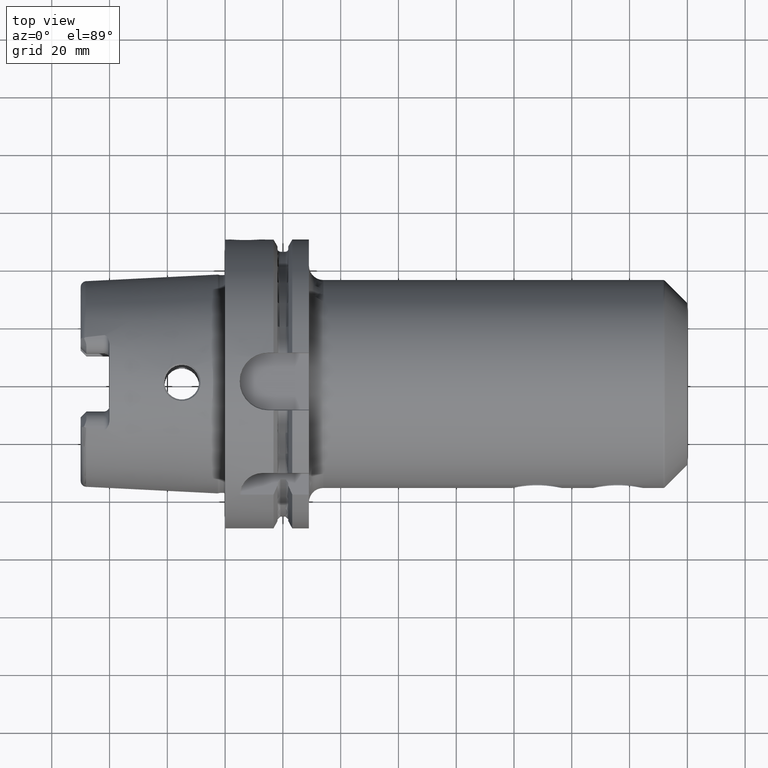
[diagram: clean part render]
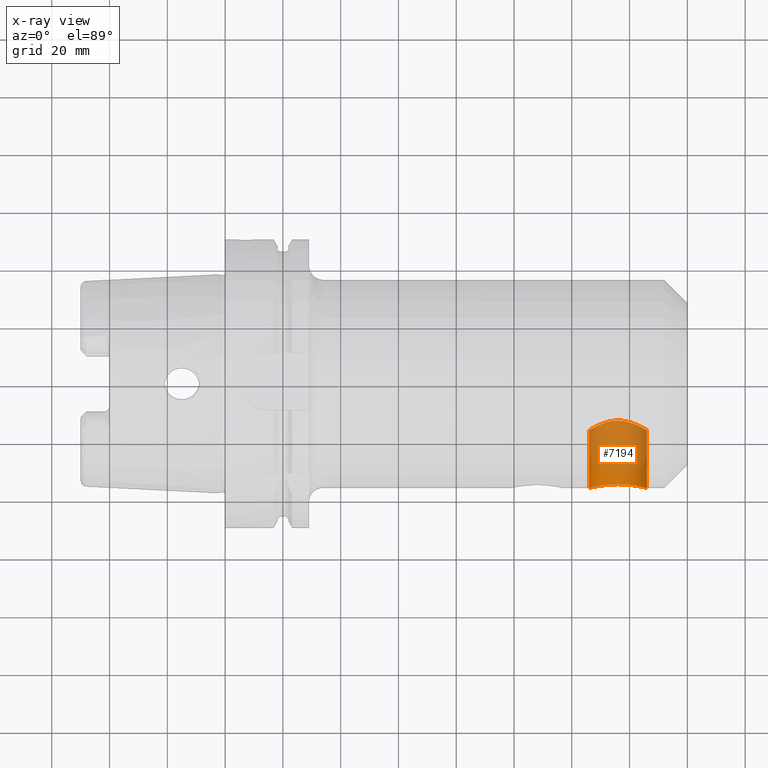
[diagram: x-ray — body ghosted, one internal face saturated and labeled with its STEP entity id]
A machine part, top view, then the same camera in x-ray: the body is ghosted and one INTERNAL B-rep face — a face not visible from any outside direction — is saturated and labeled: STEP entity #7194.
In plain terms, the highlighted cylindrical surface (edge-blend (fillet) strip) has radius 10 mm, axis along (0, -1, 0).
Its self-contained STEP definition (entity closure, byte-faithful):
#7025=CARTESIAN_POINT('',(1.46E2,-3.600001948871E1,0.E0));
#7026=CARTESIAN_POINT('',(1.46E2,-3.600001948871E1,-3.326970035041E-1));
#7027=CARTESIAN_POINT('',(1.459668016337E2,-3.599074726712E1,
-9.989837945271E-1));
#7028=CARTESIAN_POINT('',(1.458166987439E2,-3.594935381293E1,
-1.991978708146E0));
#7029=CARTESIAN_POINT('',(1.455678722160E2,-3.588198547577E1,
-2.965714832731E0));
#7030=CARTESIAN_POINT('',(1.452190916314E2,-3.579026861684E1,
-3.918055540790E0));
#7031=CARTESIAN_POINT('',(1.447751844242E2,-3.567811901873E1,
-4.831517732180E0));
#7032=CARTESIAN_POINT('',(1.442347395650E2,-3.554861062173E1,
-5.704401791278E0));
#7033=CARTESIAN_POINT('',(1.436081032388E2,-3.540820167491E1,
-6.516882436333E0));
#7034=CARTESIAN_POINT('',(1.428967397682E2,-3.526167689554E1,
-7.265636517065E0));
#7035=CARTESIAN_POINT('',(1.421152097604E2,-3.511668283093E1,
-7.934493650774E0));
#7036=CARTESIAN_POINT('',(1.412698628794E2,-3.497889940129E1,
-8.519336129542E0));
#7037=CARTESIAN_POINT('',(1.403744335922E2,-3.485485054369E1,
-9.011609863039E0));
#7038=CARTESIAN_POINT('',(1.394405272188E2,-3.474965033379E1,
-9.407682820779E0));
#7039=CARTESIAN_POINT('',(1.384753632071E2,-3.466717217435E1,
-9.706122404046E0));
#7040=CARTESIAN_POINT('',(1.374944113343E2,-3.461078996096E1,
-9.904575758736E0));
#7041=CARTESIAN_POINT('',(1.364976216694E2,-3.458202167166E1,
-1.000420355896E1));
#7042=CARTESIAN_POINT('',(1.355023361326E2,-3.458202246339E1,
-1.000420080071E1));
#7043=CARTESIAN_POINT('',(1.345055596468E2,-3.461079104080E1,
-9.904572068789E0));
#7044=CARTESIAN_POINT('',(1.335245813842E2,-3.466717627213E1,
-9.706107684469E0));
#7045=CARTESIAN_POINT('',(1.325594546628E2,-3.474965203151E1,
-9.407676798234E0));
#7046=CARTESIAN_POINT('',(1.316255010283E2,-3.485485875874E1,
-9.011577978409E0));
#7047=CARTESIAN_POINT('',(1.307301226220E2,-3.497890170135E1,
-8.519326865167E0));
#7048=CARTESIAN_POINT('',(1.298847382466E2,-3.511669179263E1,
-7.934454089918E0));
#7049=CARTESIAN_POINT('',(1.291032426076E2,-3.526168048473E1,
-7.265618975198E0));
#7050=CARTESIAN_POINT('',(1.283918626562E2,-3.540820893239E1,
-6.516843499376E0));
#7051=CARTESIAN_POINT('',(1.277652410930E2,-3.554861518989E1,
-5.704372706636E0));
#7052=CARTESIAN_POINT('',(1.272247967580E2,-3.567812361904E1,
-4.831484918277E0));
#7053=CARTESIAN_POINT('',(1.267808895377E2,-3.579027350063E1,
-3.918009927986E0));
#7054=CARTESIAN_POINT('',(1.264321217542E2,-3.588198710115E1,
-2.965694411655E0));
#7055=CARTESIAN_POINT('',(1.261832953793E2,-3.594935542605E1,
-1.991948565980E0));
#7056=CARTESIAN_POINT('',(1.260331991033E2,-3.599074704146E1,
-9.989828628477E-1));
#7057=CARTESIAN_POINT('',(1.26E2,-3.600001954760E1,-3.326973549414E-1));
#7058=CARTESIAN_POINT('',(1.26E2,-3.600001954760E1,0.E0));
#7060=CARTESIAN_POINT('',(1.26E2,-1.6E1,0.E0));
#7061=CARTESIAN_POINT('',(1.26E2,-1.6E1,-3.090908382627E-1));
#7062=CARTESIAN_POINT('',(1.260286535073E2,-1.598206677560E1,
-9.300593072372E-1));
#7063=CARTESIAN_POINT('',(1.261598360468E2,-1.590040432740E1,
-1.862117959706E0));
#7064=CARTESIAN_POINT('',(1.263796729473E2,-1.576502926104E1,
-2.784929930901E0));
#7065=CARTESIAN_POINT('',(1.266941643864E2,-1.557469218248E1,
-3.704250975965E0));
#7066=CARTESIAN_POINT('',(1.271047549187E2,-1.533227579966E1,
-4.605573915927E0));
#7067=CARTESIAN_POINT('',(1.276190510076E2,-1.503887578288E1,
-5.487674682500E0));
#7068=CARTESIAN_POINT('',(1.282341243097E2,-1.470382748711E1,
-6.329501355790E0));
#7069=CARTESIAN_POINT('',(1.289507338051E2,-1.433688983003E1,
-7.119696508608E0));
#7070=CARTESIAN_POINT('',(1.297497802121E2,-1.395995488062E1,
-7.830299606244E0));
#7071=CARTESIAN_POINT('',(1.306131279847E2,-1.359399118734E1,
-8.446947105274E0));
#7072=CARTESIAN_POINT('',(1.315160812411E2,-1.326128262879E1,
-8.957564054870E0));
#7073=CARTESIAN_POINT('',(1.324252187556E2,-1.298164361298E1,
-9.356123353511E0));
#7074=CARTESIAN_POINT('',(1.333349160665E2,-1.276098627530E1,
-9.653447520873E0));
#7075=CARTESIAN_POINT('',(1.342296081269E2,-1.260453795666E1,
-9.855891238850E0));
#7076=CARTESIAN_POINT('',(1.351195228969E2,-1.251059608153E1,
-9.974356171985E0));
#7077=CARTESIAN_POINT('',(1.359999681736E2,-1.247969603043E1,
-1.001282181707E1));
#7078=CARTESIAN_POINT('',(1.368804885162E2,-1.251059577762E1,
-9.974356559629E0));
#7079=CARTESIAN_POINT('',(1.377703800781E2,-1.260453707338E1,
-9.855892326674E0));
#7080=CARTESIAN_POINT('',(1.386650701109E2,-1.276098314986E1,
-9.653451706170E0));
#7081=CARTESIAN_POINT('',(1.395747651248E2,-1.298163961936E1,
-9.356128554514E0));
#7082=CARTESIAN_POINT('',(1.404838950921E2,-1.326127367171E1,
-8.957578094539E0));
#7083=CARTESIAN_POINT('',(1.413869098283E2,-1.359400635742E1,
-8.446922342241E0));
#7084=CARTESIAN_POINT('',(1.422501772126E2,-1.395993678912E1,
-7.830330358274E0));
#7085=CARTESIAN_POINT('',(1.430492230689E2,-1.433686854438E1,
-7.119738479946E0));
#7086=CARTESIAN_POINT('',(1.437658106688E2,-1.470379325200E1,
-6.329580022723E0));
#7087=CARTESIAN_POINT('',(1.443809004818E2,-1.503884858383E1,
-5.487749225177E0));
#7088=CARTESIAN_POINT('',(1.448951999178E2,-1.533224955152E1,
-4.605661335552E0));
#7089=CARTESIAN_POINT('',(1.453058091980E2,-1.557467630170E1,
-3.704319762944E0));
#7090=CARTESIAN_POINT('',(1.456203103961E2,-1.576501907860E1,
-2.784987725180E0));
#7091=CARTESIAN_POINT('',(1.458401548334E2,-1.590039866158E1,
-1.862170396659E0));
#7092=CARTESIAN_POINT('',(1.459713461094E2,-1.598206653123E1,
-9.300743884937E-1));
#7093=CARTESIAN_POINT('',(1.46E2,-1.6E1,-3.090953446248E-1));
#7094=CARTESIAN_POINT('',(1.46E2,-1.6E1,0.E0));
#7131=DIRECTION('',(0.E0,1.E0,0.E0));
#7132=VECTOR('',#7131,2.000001948871E1);
#7133=CARTESIAN_POINT('',(1.46E2,-3.600001948871E1,0.E0));
#7134=LINE('',#7133,#7132);
#7171=DIRECTION('',(0.E0,1.E0,0.E0));
#7172=VECTOR('',#7171,2.000001954760E1);
#7173=CARTESIAN_POINT('',(1.26E2,-3.600001954760E1,0.E0));
#7174=LINE('',#7173,#7172);
#7175=VERTEX_POINT('',#7058);
#7176=VERTEX_POINT('',#7025);
#7177=VERTEX_POINT('',#7094);
#7178=VERTEX_POINT('',#7060);
#7179=CARTESIAN_POINT('',(1.36E2,3.645406937316E0,0.E0));
#7180=DIRECTION('',(0.E0,-1.E0,0.E0));
#7181=DIRECTION('',(-1.E0,0.E0,0.E0));
#7182=AXIS2_PLACEMENT_3D('',#7179,#7180,#7181);
#7183=CYLINDRICAL_SURFACE('',#7182,1.E1);
#7185=ORIENTED_EDGE('',*,*,#7184,.T.);
#7187=ORIENTED_EDGE('',*,*,#7186,.T.);
#7189=ORIENTED_EDGE('',*,*,#7188,.T.);
#7191=ORIENTED_EDGE('',*,*,#7190,.F.);
#7192=EDGE_LOOP('',(#7185,#7187,#7189,#7191));
#7193=FACE_OUTER_BOUND('',#7192,.F.);
#7194=ADVANCED_FACE('',(#7193),#7183,.F.);
#7059=B_SPLINE_CURVE_WITH_KNOTS('',3,(#7025,#7026,#7027,#7028,#7029,#7030,#7031,
#7032,#7033,#7034,#7035,#7036,#7037,#7038,#7039,#7040,#7041,#7042,#7043,#7044,
#7045,#7046,#7047,#7048,#7049,#7050,#7051,#7052,#7053,#7054,#7055,#7056,#7057,
#7058),.UNSPECIFIED.,.F.,.F.,(4,1,1,1,1,1,1,1,1,1,1,1,1,1,1,1,1,1,1,1,1,1,1,1,1,
1,1,1,1,1,1,4),(0.E0,3.225806451613E-2,6.451612903226E-2,9.677419354839E-2,
1.290322580645E-1,1.612903225806E-1,1.935483870968E-1,2.258064516129E-1,
2.580645161290E-1,2.903225806452E-1,3.225806451613E-1,3.548387096774E-1,
3.870967741935E-1,4.193548387097E-1,4.516129032258E-1,4.838709677419E-1,
5.161290322581E-1,5.483870967742E-1,5.806451612903E-1,6.129032258065E-1,
6.451612903226E-1,6.774193548387E-1,7.096774193548E-1,7.419354838710E-1,
7.741935483871E-1,8.064516129032E-1,8.387096774194E-1,8.709677419355E-1,
9.032258064516E-1,9.354838709677E-1,9.677419354839E-1,1.E0),.UNSPECIFIED.);
#7095=B_SPLINE_CURVE_WITH_KNOTS('',3,(#7060,#7061,#7062,#7063,#7064,#7065,#7066,
#7067,#7068,#7069,#7070,#7071,#7072,#7073,#7074,#7075,#7076,#7077,#7078,#7079,
#7080,#7081,#7082,#7083,#7084,#7085,#7086,#7087,#7088,#7089,#7090,#7091,#7092,
#7093,#7094),.UNSPECIFIED.,.F.,.F.,(4,1,1,1,1,1,1,1,1,1,1,1,1,1,1,1,1,1,1,1,1,1,
1,1,1,1,1,1,1,1,1,1,4),(0.E0,3.125E-2,6.25E-2,9.375E-2,1.25E-1,1.5625E-1,
1.875E-1,2.1875E-1,2.5E-1,2.8125E-1,3.125E-1,3.4375E-1,3.75E-1,4.0625E-1,
4.375E-1,4.6875E-1,5.E-1,5.3125E-1,5.625E-1,5.9375E-1,6.25E-1,6.5625E-1,
6.875E-1,7.1875E-1,7.5E-1,7.8125E-1,8.125E-1,8.4375E-1,8.75E-1,9.0625E-1,
9.375E-1,9.6875E-1,1.E0),.UNSPECIFIED.);
#7184=EDGE_CURVE('',#7176,#7175,#7059,.T.);
#7186=EDGE_CURVE('',#7175,#7178,#7174,.T.);
#7188=EDGE_CURVE('',#7178,#7177,#7095,.T.);
#7190=EDGE_CURVE('',#7176,#7177,#7134,.T.);